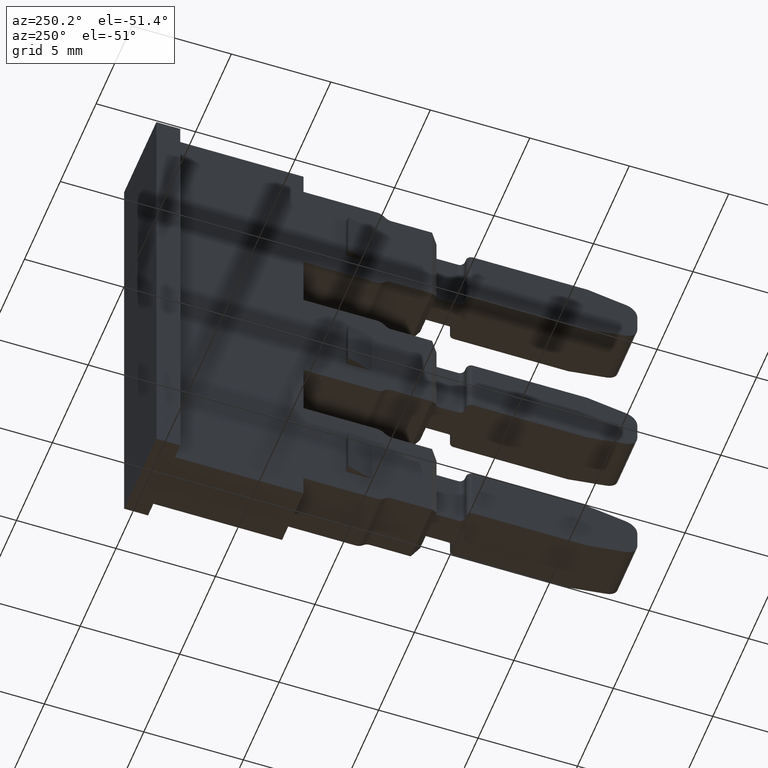
[diagram: clean part render]
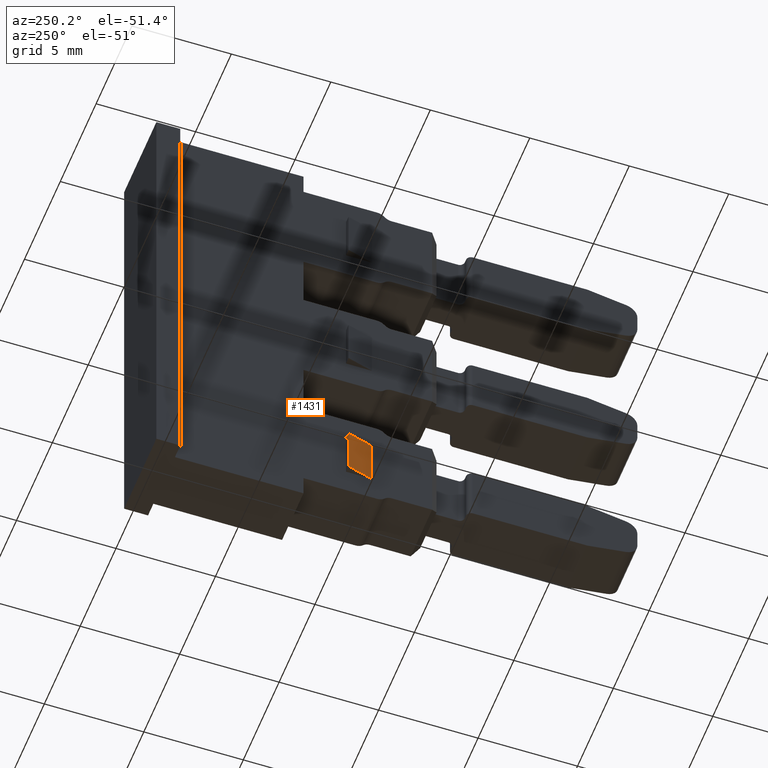
[diagram: same view with one face highlighted and labeled with its STEP entity id]
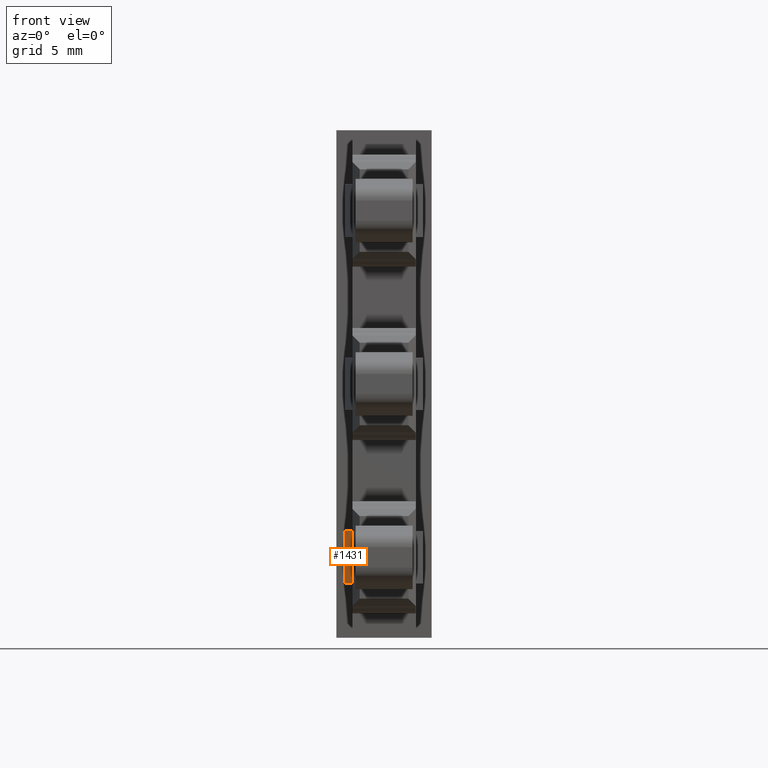
[diagram: same view with one face highlighted and labeled with its STEP entity id]
A machine part, auxiliary view. The second image highlights one B-rep face of the part: STEP entity #1431.
A second angle (front view) of the same face is appended — the face is thin or edge-on in the first view.
In plain terms, the highlighted planar face has unit normal (-0.9656, -0.26, 0).
Its self-contained STEP definition (entity closure, byte-faithful):
#64 = FACE_OUTER_BOUND ( 'NONE', #1956, .T. ) ;
#66 = PLANE ( 'NONE',  #3057 ) ;
#67 = CARTESIAN_POINT ( 'NONE',  ( 108.8952529172785400, 250.5101602476015900, 151.5898226793856900 ) ) ;
#70 = DIRECTION ( 'NONE',  ( -0.9656157585206741600, -0.2599734734478563700, 0.0000000000000000000 ) ) ;
#72 = DIRECTION ( 'NONE',  ( 0.2599734734478563700, -0.9656157585206741600, 0.0000000000000000000 ) ) ;
#761 = CARTESIAN_POINT ( 'NONE',  ( 108.8952529172785400, 250.5101602476015900, 151.5898226793856900 ) ) ;
#764 = CARTESIAN_POINT ( 'NONE',  ( 108.8952529172785400, 250.5101602476015900, 154.0898226793856900 ) ) ;
#784 = CARTESIAN_POINT ( 'NONE',  ( 109.2452529172786600, 249.2101602476015800, 154.0898226793856900 ) ) ;
#832 = CARTESIAN_POINT ( 'NONE',  ( 109.2452529172786900, 249.2101602476010100, 151.5898226793856900 ) ) ;
#1079 = EDGE_CURVE ( 'NONE', #1635, #1614, #3828, .T. ) ;
#1081 = EDGE_CURVE ( 'NONE', #1638, #1614, #3818, .T. ) ;
#1104 = EDGE_CURVE ( 'NONE', #1632, #1638, #3850, .T. ) ;
#1111 = EDGE_CURVE ( 'NONE', #1632, #1635, #3928, .T. ) ;
#1431 = ADVANCED_FACE ( 'NONE', ( #64 ), #66, .T. ) ;
#1614 = VERTEX_POINT ( 'NONE', #784 ) ;
#1632 = VERTEX_POINT ( 'NONE', #761 ) ;
#1635 = VERTEX_POINT ( 'NONE', #764 ) ;
#1638 = VERTEX_POINT ( 'NONE', #832 ) ;
#1956 = EDGE_LOOP ( 'NONE', ( #2628, #2520, #2581, #2569 ) ) ;
#2520 = ORIENTED_EDGE ( 'NONE', *, *, #1111, .F. ) ;
#2569 = ORIENTED_EDGE ( 'NONE', *, *, #1081, .T. ) ;
#2581 = ORIENTED_EDGE ( 'NONE', *, *, #1104, .T. ) ;
#2628 = ORIENTED_EDGE ( 'NONE', *, *, #1079, .F. ) ;
#2670 = VECTOR ( 'NONE', #3845, 1000.000000000000100 ) ;
#2673 = VECTOR ( 'NONE', #3907, 1000.000000000000000 ) ;
#2678 = VECTOR ( 'NONE', #3802, 1000.000000000000000 ) ;
#2700 = VECTOR ( 'NONE', #3917, 1000.000000000000100 ) ;
#3057 = AXIS2_PLACEMENT_3D ( 'NONE', #67, #70, #72 ) ;
#3802 = DIRECTION ( 'NONE',  ( 0.0000000000000000000, 0.0000000000000000000, 1.000000000000000000 ) ) ;
#3814 = CARTESIAN_POINT ( 'NONE',  ( 108.8952529172785400, 250.5101602476015900, 154.0898226793856900 ) ) ;
#3818 = LINE ( 'NONE', #3838, #2678 ) ;
#3828 = LINE ( 'NONE', #3814, #2670 ) ;
#3838 = CARTESIAN_POINT ( 'NONE',  ( 109.2452529172785200, 249.2101602476015800, 151.5898226793856900 ) ) ;
#3845 = DIRECTION ( 'NONE',  ( 0.2599734734478563200, -0.9656157585206740500, 0.0000000000000000000 ) ) ;
#3850 = LINE ( 'NONE', #3936, #2700 ) ;
#3907 = DIRECTION ( 'NONE',  ( 0.0000000000000000000, 0.0000000000000000000, 1.000000000000000000 ) ) ;
#3917 = DIRECTION ( 'NONE',  ( 0.2599734734478563200, -0.9656157585206740500, 0.0000000000000000000 ) ) ;
#3928 = LINE ( 'NONE', #3937, #2673 ) ;
#3936 = CARTESIAN_POINT ( 'NONE',  ( 108.8952529172785400, 250.5101602476015900, 151.5898226793856900 ) ) ;
#3937 = CARTESIAN_POINT ( 'NONE',  ( 108.8952529172785400, 250.5101602476015900, 151.5898226793856900 ) ) ;